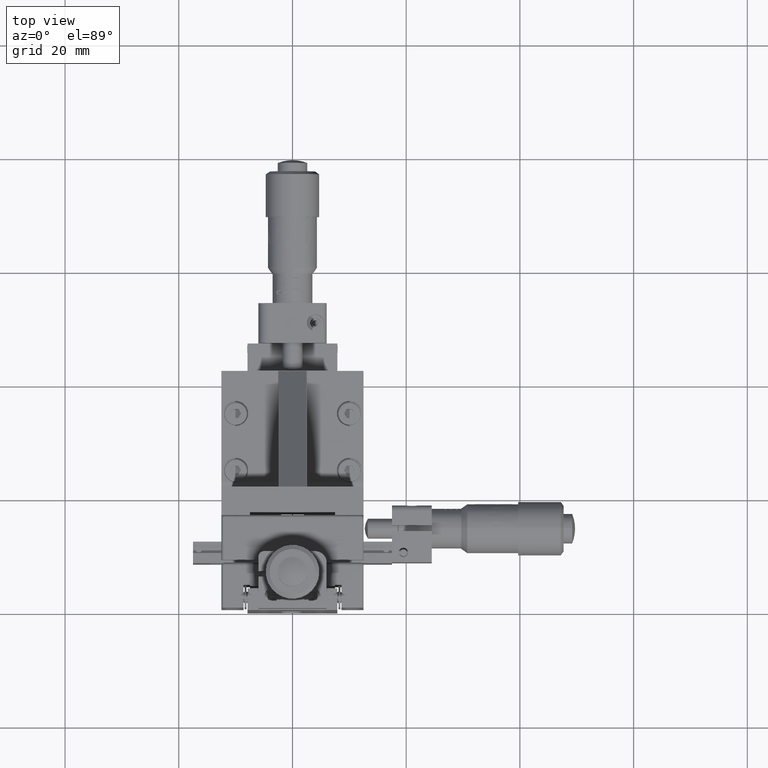
[diagram: clean part render]
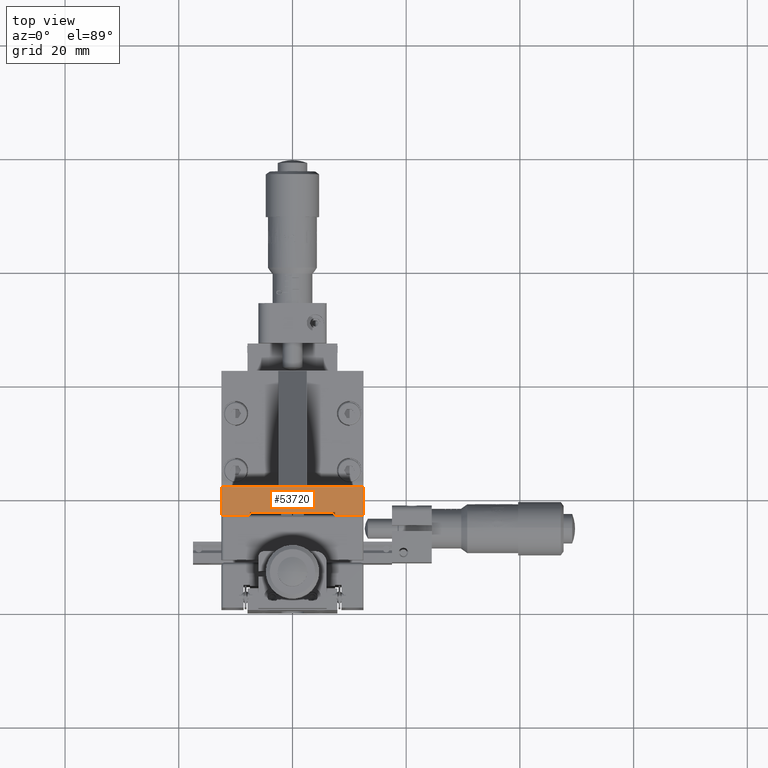
[diagram: same view with one face highlighted and labeled with its STEP entity id]
A machine part, top view. The second image highlights one B-rep face of the part: STEP entity #53720.
In plain terms, the highlighted planar face has unit normal (0, -0, -1).
Its self-contained STEP definition (entity closure, byte-faithful):
#93 = VECTOR ( 'NONE', #18082, 1000.000000000000000 ) ;
#296 = CARTESIAN_POINT ( 'NONE',  ( 7.500000000000863300, 17.30000000000006100, 12.49999999999913800 ) ) ;
#2713 = CARTESIAN_POINT ( 'NONE',  ( -12.49999999999913700, 21.80000000000005400, 12.49999999999913300 ) ) ;
#3177 = ORIENTED_EDGE ( 'NONE', *, *, #26361, .F. ) ;
#3211 = ORIENTED_EDGE ( 'NONE', *, *, #80397, .F. ) ;
#4534 = VERTEX_POINT ( 'NONE', #296 ) ;
#6609 = VECTOR ( 'NONE', #17883, 1000.000000000000000 ) ;
#9495 = CARTESIAN_POINT ( 'NONE',  ( -2.499999999999136700, 21.80000000000005400, 12.49999999999913300 ) ) ;
#11623 = CARTESIAN_POINT ( 'NONE',  ( -12.49999999999913700, 16.80000000000006100, 12.49999999999913800 ) ) ;
#13913 = ORIENTED_EDGE ( 'NONE', *, *, #80821, .F. ) ;
#14391 = FACE_OUTER_BOUND ( 'NONE', #106485, .T. ) ;
#15405 = CARTESIAN_POINT ( 'NONE',  ( 7.500000000000863300, 16.80000000000006100, 12.49999999999913800 ) ) ;
#16133 = LINE ( 'NONE', #86954, #67947 ) ;
#17883 = DIRECTION ( 'NONE',  ( -1.000000000000000000, -0.0000000000000000000, -0.0000000000000000000 ) ) ;
#18082 = DIRECTION ( 'NONE',  ( -1.000000000000000000, -0.0000000000000000000, -0.0000000000000000000 ) ) ;
#21847 = DIRECTION ( 'NONE',  ( -1.000000000000000000, -0.0000000000000000000, -0.0000000000000000000 ) ) ;
#22985 = EDGE_CURVE ( 'NONE', #41136, #32073, #40406, .T. ) ;
#23322 = CARTESIAN_POINT ( 'NONE',  ( -12.49999999999913700, 42.50000000000006400, 12.49999999999913500 ) ) ;
#23697 = CARTESIAN_POINT ( 'NONE',  ( 2.500000000000864200, 21.80000000000005400, 12.49999999999913300 ) ) ;
#24037 = CARTESIAN_POINT ( 'NONE',  ( -7.499999999999135800, 17.30000000000006100, 12.49999999999913800 ) ) ;
#25962 = ORIENTED_EDGE ( 'NONE', *, *, #49853, .T. ) ;
#26361 = EDGE_CURVE ( 'NONE', #94965, #106403, #74300, .T. ) ;
#26631 = CARTESIAN_POINT ( 'NONE',  ( 12.50000000000086500, 16.80000000000006100, 12.49999999999913800 ) ) ;
#27189 = VERTEX_POINT ( 'NONE', #72802 ) ;
#30288 = CARTESIAN_POINT ( 'NONE',  ( 12.50000000000086500, 16.80000000000006100, 12.49999999999913800 ) ) ;
#30497 = VECTOR ( 'NONE', #65395, 1000.000000000000000 ) ;
#32073 = VERTEX_POINT ( 'NONE', #11623 ) ;
#33282 = DIRECTION ( 'NONE',  ( 0.0000000000000000000, -1.000000000000000000, 1.349979358736815000E-016 ) ) ;
#35183 = CARTESIAN_POINT ( 'NONE',  ( 2.500000000000864200, 21.80000000000005400, 12.49999999999913500 ) ) ;
#36834 = CARTESIAN_POINT ( 'NONE',  ( -7.499999999999135800, 17.30000000000006100, 12.49999999999913800 ) ) ;
#40406 = LINE ( 'NONE', #30288, #70345 ) ;
#41136 = VERTEX_POINT ( 'NONE', #61665 ) ;
#41230 = ORIENTED_EDGE ( 'NONE', *, *, #104789, .F. ) ;
#41308 = DIRECTION ( 'NONE',  ( 1.000000000000000000, -0.0000000000000000000, -0.0000000000000000000 ) ) ;
#41364 = DIRECTION ( 'NONE',  ( -0.0000000000000000000, -1.000000000000000000, -0.0000000000000000000 ) ) ;
#42389 = EDGE_CURVE ( 'NONE', #86516, #41136, #59153, .T. ) ;
#43677 = ORIENTED_EDGE ( 'NONE', *, *, #22985, .F. ) ;
#44429 = VERTEX_POINT ( 'NONE', #2713 ) ;
#44818 = DIRECTION ( 'NONE',  ( 0.0000000000000000000, -1.349979358736815000E-016, -1.000000000000000000 ) ) ;
#45574 = ORIENTED_EDGE ( 'NONE', *, *, #42389, .F. ) ;
#49853 = EDGE_CURVE ( 'NONE', #4534, #106403, #72124, .T. ) ;
#51053 = EDGE_CURVE ( 'NONE', #110272, #44429, #102145, .T. ) ;
#52601 = DIRECTION ( 'NONE',  ( 0.0000000000000000000, -1.000000000000000000, 1.349979358736815000E-016 ) ) ;
#53720 = ADVANCED_FACE ( 'NONE', ( #14391 ), #77573, .F. ) ;
#55315 = VECTOR ( 'NONE', #70850, 1000.000000000000000 ) ;
#55987 = LINE ( 'NONE', #36834, #93 ) ;
#57184 = VERTEX_POINT ( 'NONE', #35183 ) ;
#59153 = LINE ( 'NONE', #24037, #30497 ) ;
#61665 = CARTESIAN_POINT ( 'NONE',  ( -7.499999999999135800, 16.80000000000006100, 12.49999999999913800 ) ) ;
#65060 = AXIS2_PLACEMENT_3D ( 'NONE', #95169, #44818, #105736 ) ;
#65395 = DIRECTION ( 'NONE',  ( -0.0000000000000000000, -1.000000000000000000, -0.0000000000000000000 ) ) ;
#67947 = VECTOR ( 'NONE', #52601, 1000.000000000000000 ) ;
#69465 = CARTESIAN_POINT ( 'NONE',  ( -2.499999999999140200, 21.80000000000005400, 12.49999999999913500 ) ) ;
#70345 = VECTOR ( 'NONE', #21847, 1000.000000000000000 ) ;
#70850 = DIRECTION ( 'NONE',  ( -1.000000000000000000, -0.0000000000000000000, -0.0000000000000000000 ) ) ;
#71219 = ORIENTED_EDGE ( 'NONE', *, *, #51053, .T. ) ;
#72124 = LINE ( 'NONE', #92490, #108980 ) ;
#72802 = CARTESIAN_POINT ( 'NONE',  ( 12.50000000000086500, 21.80000000000006100, 12.49999999999913800 ) ) ;
#74300 = LINE ( 'NONE', #26631, #55315 ) ;
#75878 = ORIENTED_EDGE ( 'NONE', *, *, #81380, .F. ) ;
#77573 = PLANE ( 'NONE',  #65060 ) ;
#78444 = CARTESIAN_POINT ( 'NONE',  ( -12.49999999999913700, 21.80000000000005400, 12.49999999999913500 ) ) ;
#78571 = ORIENTED_EDGE ( 'NONE', *, *, #93615, .T. ) ;
#80397 = EDGE_CURVE ( 'NONE', #4534, #86516, #55987, .T. ) ;
#80821 = EDGE_CURVE ( 'NONE', #57184, #27189, #110427, .T. ) ;
#81380 = EDGE_CURVE ( 'NONE', #110272, #57184, #99501, .T. ) ;
#81830 = CARTESIAN_POINT ( 'NONE',  ( -7.499999999999135800, 17.30000000000006100, 12.49999999999913800 ) ) ;
#84214 = LINE ( 'NONE', #23322, #101928 ) ;
#86516 = VERTEX_POINT ( 'NONE', #81830 ) ;
#86954 = CARTESIAN_POINT ( 'NONE',  ( 12.50000000000086500, 42.50000000000006400, 12.49999999999913500 ) ) ;
#90036 = VECTOR ( 'NONE', #97134, 1000.000000000000000 ) ;
#91502 = VECTOR ( 'NONE', #41308, 1000.000000000000000 ) ;
#92490 = CARTESIAN_POINT ( 'NONE',  ( 7.500000000000863300, 17.30000000000006100, 12.49999999999913800 ) ) ;
#93615 = EDGE_CURVE ( 'NONE', #44429, #32073, #84214, .T. ) ;
#94965 = VERTEX_POINT ( 'NONE', #97536 ) ;
#95169 = CARTESIAN_POINT ( 'NONE',  ( 12.50000000000086500, 42.50000000000006400, 12.49999999999913500 ) ) ;
#97134 = DIRECTION ( 'NONE',  ( 1.000000000000000000, -0.0000000000000000000, -0.0000000000000000000 ) ) ;
#97536 = CARTESIAN_POINT ( 'NONE',  ( 12.50000000000086500, 16.80000000000006100, 12.49999999999913800 ) ) ;
#99501 = LINE ( 'NONE', #78444, #90036 ) ;
#101928 = VECTOR ( 'NONE', #33282, 1000.000000000000000 ) ;
#102145 = LINE ( 'NONE', #9495, #6609 ) ;
#104789 = EDGE_CURVE ( 'NONE', #27189, #94965, #16133, .T. ) ;
#105736 = DIRECTION ( 'NONE',  ( 0.0000000000000000000, 1.000000000000000000, -1.349979358736815000E-016 ) ) ;
#106403 = VERTEX_POINT ( 'NONE', #15405 ) ;
#106485 = EDGE_LOOP ( 'NONE', ( #43677, #45574, #3211, #25962, #3177, #41230, #13913, #75878, #71219, #78571 ) ) ;
#108980 = VECTOR ( 'NONE', #41364, 1000.000000000000000 ) ;
#110272 = VERTEX_POINT ( 'NONE', #69465 ) ;
#110427 = LINE ( 'NONE', #23697, #91502 ) ;